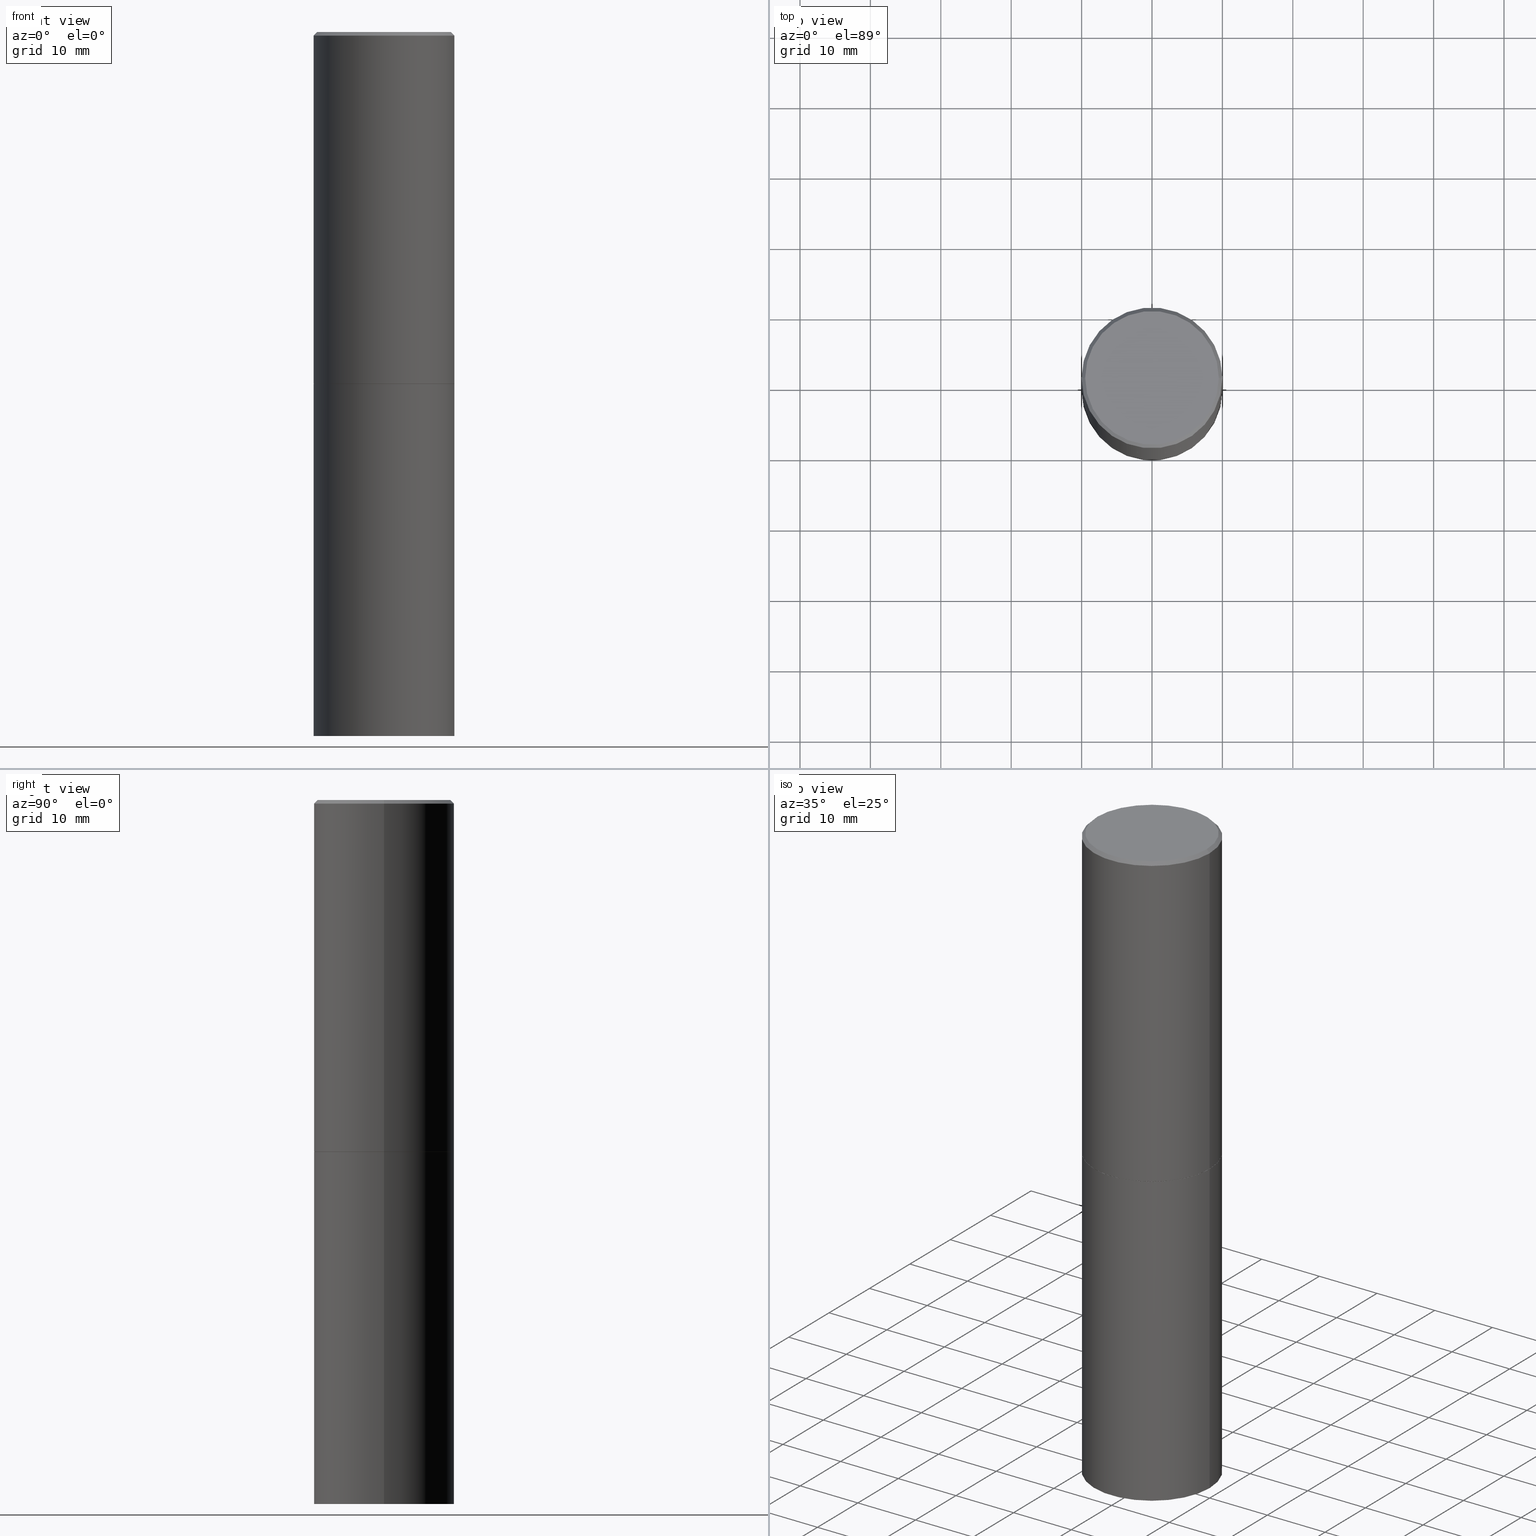
[diagram: canonical four-view strip — front | top / right | iso, engineering-drawing reading convention]
A machine part, canonical four-view strip (front | top / right | iso — engineering-drawing reading convention). The complete STEP part file that produces these views, byte-faithful:
ISO-10303-21;
HEADER;
FILE_DESCRIPTION (( 'STEP AP203' ),
    '1' );
FILE_NAME ('74793.STEP',
    '2024-05-03T15:03:54',
    ( '' ),
    ( '' ),
    'SwSTEP 2.0',
    'SolidWorks 2023',
    '' );
FILE_SCHEMA (( 'CONFIG_CONTROL_DESIGN' ));
ENDSEC;

DATA;
#1 = CARTESIAN_POINT ( 'NONE',  ( 4.813905344975442395E-29, -6.872981015512733285E-15, -1.968500000000000361 ) ) ;
#2 = CARTESIAN_POINT ( 'NONE',  ( -0.3937000000000001609, -6.722528297878588461E-16, -1.967500000000000027 ) ) ;
#3 = AXIS2_PLACEMENT_3D ( 'NONE', #167, #295, #170 ) ;
#4 = CARTESIAN_POINT ( 'NONE',  ( 4.813905344975442395E-29, -6.872981015512733285E-15, -1.968500000000000361 ) ) ;
#5 = PERSON_AND_ORGANIZATION ( #17, #74 ) ;
#6 = PLANE ( 'NONE',  #180 ) ;
#7 = DIRECTION ( 'NONE',  ( -0.7071067811864750752, 7.493145998870092258E-15, 0.7071067811866199593 ) ) ;
#8 = DIRECTION ( 'NONE',  ( -2.445468806185136597E-29, 3.491481338843145583E-15, 1.000000000000000000 ) ) ;
#9 = LOCAL_TIME ( 11, 3, 54.00000000000000000, #90 ) ;
#10 = VECTOR ( 'NONE', #147, 39.37007874015748143 ) ;
#11 = DIRECTION ( 'NONE',  ( 1.000000000000000000, -6.982962677686266711E-15, 4.876212485538977921E-29 ) ) ;
#12 = APPROVAL ( #317, 'UNSPECIFIED' ) ;
#13 = CC_DESIGN_DATE_AND_TIME_ASSIGNMENT ( #29, #286, ( #327 ) ) ;
#14 = VECTOR ( 'NONE', #193, 39.37007874015748143 ) ;
#15 = LOCAL_TIME ( 11, 3, 54.00000000000000000, #63 ) ;
#16 = APPROVAL_DATE_TIME ( #80, #354 ) ;
#17 = PERSON ( 'UNSPECIFIED', 'UNSPECIFIED', 'UNSPECIFIED', ('UNSPECIFIED'), ('UNSPECIFIED'), ('UNSPECIFIED') ) ;
#18 = ORIENTED_EDGE ( 'NONE', *, *, #344, .F. ) ;
#19 = CONICAL_SURFACE ( 'NONE', #244, 0.3936999999999998279, 0.7853981633974457255 ) ;
#20 = CARTESIAN_POINT ( 'NONE',  ( -0.3936999999999998279, 2.679362779428218735E-15, -0.02000000000000008715 ) ) ;
#21 = ORIENTED_EDGE ( 'NONE', *, *, #47, .T. ) ;
#22 = COORDINATED_UNIVERSAL_TIME_OFFSET ( 5, 0, .BEHIND. ) ;
#23 = EDGE_LOOP ( 'NONE', ( #265, #303 ) ) ;
#24 = EDGE_CURVE ( 'NONE', #50, #243, #133, .T. ) ;
#25 = LINE ( 'NONE', #222, #210 ) ;
#26 = DATE_AND_TIME ( #174, #53 ) ;
#27 = ORIENTED_EDGE ( 'NONE', *, *, #84, .F. ) ;
#28 = CIRCLE ( 'NONE', #3, 0.3937000000000001609 ) ;
#29 = DATE_AND_TIME ( #365, #9 ) ;
#30 = DIRECTION ( 'NONE',  ( 1.000000000000000000, -6.982962677686267499E-15, 0.000000000000000000 ) ) ;
#31 = DATE_AND_TIME ( #309, #15 ) ;
#32 = VERTEX_POINT ( 'NONE', #2 ) ;
#33 = DIRECTION ( 'NONE',  ( -2.445468806185136597E-29, 3.491481338843145583E-15, 1.000000000000000000 ) ) ;
#34 = PERSON_AND_ORGANIZATION ( #17, #74 ) ;
#35 = LINE ( 'NONE', #151, #267 ) ;
#36 = CIRCLE ( 'NONE', #333, 0.3937000000000001609 ) ;
#37 = MANIFOLD_SOLID_BREP ( 'Body-Move/Copy2[2]', #360 ) ;
#38 = DIRECTION ( 'NONE',  ( 0.7071067811864750752, -2.468850131081498176E-15, 0.7071067811866199593 ) ) ;
#39 = EDGE_CURVE ( 'NONE', #243, #248, #338, .T. ) ;
#40 = CYLINDRICAL_SURFACE ( 'NONE', #218, 0.3936999999999999389 ) ;
#41 = CARTESIAN_POINT ( 'NONE',  ( 4.813905344975441835E-29, -6.872981015512731707E-15, -1.968500000000000139 ) ) ;
#42 =( NAMED_UNIT ( * ) SI_UNIT ( $, .STERADIAN. ) SOLID_ANGLE_UNIT ( ) );
#43 = CONICAL_SURFACE ( 'NONE', #239, 0.3936999999999998279, 0.7853981633974457255 ) ;
#44 = APPROVAL_PERSON_ORGANIZATION ( #160, #354, #100 ) ;
#45 = CARTESIAN_POINT ( 'NONE',  ( 0.000000000000000000, 0.000000000000000000, 0.000000000000000000 ) ) ;
#46 = VECTOR ( 'NONE', #38, 39.37007874015748143 ) ;
#47 = EDGE_CURVE ( 'NONE', #186, #278, #140, .T. ) ;
#48 = ORIENTED_EDGE ( 'NONE', *, *, #39, .T. ) ;
#49 = CARTESIAN_POINT ( 'NONE',  ( -2.087702828670439639E-46, 2.980686340760894400E-32, 8.537024980200822558E-18 ) ) ;
#50 = VERTEX_POINT ( 'NONE', #228 ) ;
#51 = AXIS2_PLACEMENT_3D ( 'NONE', #253, #116, #148 ) ;
#52 = AXIS2_PLACEMENT_3D ( 'NONE', #118, #288, #149 ) ;
#53 = LOCAL_TIME ( 11, 3, 54.00000000000000000, #199 ) ;
#54 = ORIENTED_EDGE ( 'NONE', *, *, #39, .F. ) ;
#55 = DIRECTION ( 'NONE',  ( -2.438088387897960049E-29, 3.491481338843145188E-15, 1.000000000000000000 ) ) ;
#56 = EDGE_LOOP ( 'NONE', ( #111, #355, #102, #362 ) ) ;
#57 = ORIENTED_EDGE ( 'NONE', *, *, #189, .T. ) ;
#58 = DIRECTION ( 'NONE',  ( 1.000000000000000000, -6.982962677686265922E-15, 4.876176775795935793E-29 ) ) ;
#59 = EDGE_LOOP ( 'NONE', ( #330, #322, #358, #21 ) ) ;
#60 =( LENGTH_UNIT ( ) NAMED_UNIT ( * ) SI_UNIT ( $, .METRE. ) );
#61 = PERSON_AND_ORGANIZATION_ROLE ( 'design_supplier' ) ;
#62 = DIRECTION ( 'NONE',  ( 1.000000000000000000, -6.982962677686265133E-15, 0.000000000000000000 ) ) ;
#63 = COORDINATED_UNIVERSAL_TIME_OFFSET ( 5, 0, .BEHIND. ) ;
#64 = FACE_OUTER_BOUND ( 'NONE', #56, .T. ) ;
#65 = AXIS2_PLACEMENT_3D ( 'NONE', #166, #281, #364 ) ;
#66 = EDGE_CURVE ( 'NONE', #248, #32, #28, .T. ) ;
#67 = SECURITY_CLASSIFICATION ( '', '', #86 ) ;
#68 = DIRECTION ( 'NONE',  ( -2.445468806185136877E-29, 3.491481338843145188E-15, 1.000000000000000000 ) ) ;
#69 = DIRECTION ( 'NONE',  ( -2.445468806185136597E-29, 3.491481338843145583E-15, 1.000000000000000000 ) ) ;
#70 = DIRECTION ( 'NONE',  ( -2.445468806185136597E-29, 3.491481338843145583E-15, 1.000000000000000000 ) ) ;
#71 = PERSON_AND_ORGANIZATION ( #17, #74 ) ;
#72 = ADVANCED_FACE ( 'NONE', ( #287 ), #256, .T. ) ;
#73 = EDGE_LOOP ( 'NONE', ( #18, #114 ) ) ;
#74 = ORGANIZATION ( 'UNSPECIFIED', 'UNSPECIFIED', '' ) ;
#75 = CC_DESIGN_DATE_AND_TIME_ASSIGNMENT ( #26, #241, ( #67 ) ) ;
#76 = ORIENTED_EDGE ( 'NONE', *, *, #146, .F. ) ;
#77 = DIRECTION ( 'NONE',  ( 1.000000000000000000, -6.982962677686266711E-15, 4.876212485538977921E-29 ) ) ;
#78 = ORIENTED_EDGE ( 'NONE', *, *, #234, .T. ) ;
#79 = CIRCLE ( 'NONE', #187, 0.3937000000000000499 ) ;
#80 = DATE_AND_TIME ( #240, #280 ) ;
#81 = ORIENTED_EDGE ( 'NONE', *, *, #66, .F. ) ;
#82 = DIRECTION ( 'NONE',  ( -1.000000000000000000, 6.982962677686266711E-15, 0.000000000000000000 ) ) ;
#83 = CYLINDRICAL_SURFACE ( 'NONE', #128, 0.3937000000000000499 ) ;
#84 = EDGE_CURVE ( 'NONE', #32, #186, #96, .T. ) ;
#85 = UNCERTAINTY_MEASURE_WITH_UNIT (LENGTH_MEASURE( 1.000000000000000082E-05 ), #232, 'distance_accuracy_value', 'NONE');
#86 = SECURITY_CLASSIFICATION_LEVEL ( 'unclassified' ) ;
#87 = CARTESIAN_POINT ( 'NONE',  ( 2.609533152651356226E-15, 0.3736999999999998101, -1.300498063835582617E-15 ) ) ;
#88 = CONICAL_SURFACE ( 'NONE', #320, 0.3926999999999999935, 0.7853981633973459164 ) ;
#89 = CARTESIAN_POINT ( 'NONE',  ( 0.000000000000000000, 0.000000000000000000, 0.000000000000000000 ) ) ;
#90 = COORDINATED_UNIVERSAL_TIME_OFFSET ( 5, 0, .BEHIND. ) ;
#91 = CARTESIAN_POINT ( 'NONE',  ( -0.3936999999999999389, 2.797406750687513998E-15, -1.936584745033356455E-29 ) ) ;
#92 = APPROVAL_STATUS ( 'not_yet_approved' ) ;
#93 = CARTESIAN_POINT ( 'NONE',  ( 0.3937000000000000499, -9.622173421717814924E-15, -1.968500000000000139 ) ) ;
#94 = ADVANCED_FACE ( 'NONE', ( #197 ), #6, .F. ) ;
#95 = DIRECTION ( 'NONE',  ( -2.445468806185136597E-29, 3.491481338843145583E-15, 1.000000000000000000 ) ) ;
#96 = LINE ( 'NONE', #91, #268 ) ;
#97 = DIRECTION ( 'NONE',  ( -1.000000000000000000, 6.982962677686266711E-15, 0.000000000000000000 ) ) ;
#98 = EDGE_CURVE ( 'NONE', #246, #131, #79, .T. ) ;
#99 = ORIENTED_EDGE ( 'NONE', *, *, #254, .T. ) ;
#100 = APPROVAL_ROLE ( '' ) ;
#101 = PRODUCT_DEFINITION_FORMATION_WITH_SPECIFIED_SOURCE ( 'ANY', '', #144, .NOT_KNOWN. ) ;
#102 = ORIENTED_EDGE ( 'NONE', *, *, #254, .F. ) ;
#103 = ADVANCED_FACE ( 'NONE', ( #200 ), #83, .T. ) ;
#104 = EDGE_LOOP ( 'NONE', ( #217, #139, #81, #54 ) ) ;
#105 = AXIS2_PLACEMENT_3D ( 'NONE', #266, #70, #296 ) ;
#106 = CC_DESIGN_PERSON_AND_ORGANIZATION_ASSIGNMENT ( #337, #169, ( #327 ) ) ;
#107 = SHAPE_DEFINITION_REPRESENTATION ( #308, #154 ) ;
#108 = VERTEX_POINT ( 'NONE', #290 ) ;
#109 = APPLICATION_PROTOCOL_DEFINITION ( 'international standard', 'config_control_design', 1994, #184 ) ;
#110 = FACE_OUTER_BOUND ( 'NONE', #59, .T. ) ;
#111 = ORIENTED_EDGE ( 'NONE', *, *, #66, .T. ) ;
#112 = LINE ( 'NONE', #336, #14 ) ;
#113 = PERSON_AND_ORGANIZATION ( #17, #74 ) ;
#114 = ORIENTED_EDGE ( 'NONE', *, *, #24, .F. ) ;
#115 = DIRECTION ( 'NONE',  ( -2.445468806185136597E-29, 3.491481338843145583E-15, 1.000000000000000000 ) ) ;
#116 = DIRECTION ( 'NONE',  ( -2.445468806185136597E-29, 3.491481338843145583E-15, 1.000000000000000000 ) ) ;
#117 = EDGE_CURVE ( 'NONE', #50, #32, #35, .T. ) ;
#118 = CARTESIAN_POINT ( 'NONE',  ( 2.749192406205130943E-15, 0.3936999999999931110, -1.968500000000001471 ) ) ;
#119 = PERSON_AND_ORGANIZATION_ROLE ( 'classification_officer' ) ;
#120 = CARTESIAN_POINT ( 'NONE',  ( 9.627810689950883669E-29, -1.374596203102546341E-14, -3.937000000000000277 ) ) ;
#121 = LENGTH_MEASURE_WITH_UNIT ( LENGTH_MEASURE( 0.02539999999999999897 ), #60 );
#122 = CC_DESIGN_PERSON_AND_ORGANIZATION_ASSIGNMENT ( #150, #61, ( #101 ) ) ;
#123 = APPROVAL_ROLE ( '' ) ;
#124 = DIRECTION ( 'NONE',  ( -1.000000000000000000, 6.982962677686265922E-15, -4.876176775795935793E-29 ) ) ;
#125 =( NAMED_UNIT ( * ) PLANE_ANGLE_UNIT ( ) SI_UNIT ( $, .RADIAN. ) );
#126 = FACE_OUTER_BOUND ( 'NONE', #73, .T. ) ;
#127 = APPROVAL_PERSON_ORGANIZATION ( #289, #185, #252 ) ;
#128 = AXIS2_PLACEMENT_3D ( 'NONE', #171, #191, #58 ) ;
#129 = EDGE_CURVE ( 'NONE', #347, #136, #326, .T. ) ;
#130 = EDGE_LOOP ( 'NONE', ( #263, #78, #99, #307 ) ) ;
#131 = VERTEX_POINT ( 'NONE', #93 ) ;
#132 = EDGE_LOOP ( 'NONE', ( #277, #57 ) ) ;
#133 = CIRCLE ( 'NONE', #51, 0.3926999999999999935 ) ;
#134 = CONICAL_SURFACE ( 'NONE', #305, 0.3926999999999999935, 0.7853981633973459164 ) ;
#135 = FACE_OUTER_BOUND ( 'NONE', #329, .T. ) ;
#136 = VERTEX_POINT ( 'NONE', #318 ) ;
#137 = ADVANCED_FACE ( 'NONE', ( #64 ), #233, .T. ) ;
#138 = CC_DESIGN_PERSON_AND_ORGANIZATION_ASSIGNMENT ( #71, #300, ( #144 ) ) ;
#139 = ORIENTED_EDGE ( 'NONE', *, *, #117, .T. ) ;
#140 = CIRCLE ( 'NONE', #182, 0.3936999999999998279 ) ;
#141 = AXIS2_PLACEMENT_3D ( 'NONE', #335, #293, #152 ) ;
#142 = DIRECTION ( 'NONE',  ( -0.7071067811865456854, 2.468850131082237733E-15, -0.7071067811865493491 ) ) ;
#143 = VERTEX_POINT ( 'NONE', #202 ) ;
#144 = PRODUCT ( '74793', '74793', '', ( #157 ) ) ;
#145 = FACE_OUTER_BOUND ( 'NONE', #130, .T. ) ;
#146 = EDGE_CURVE ( 'NONE', #136, #347, #192, .T. ) ;
#147 = DIRECTION ( 'NONE',  ( -2.445468806185136877E-29, 3.491481338843145188E-15, 1.000000000000000000 ) ) ;
#148 = DIRECTION ( 'NONE',  ( 1.000000000000000000, -6.982962677686265133E-15, 0.000000000000000000 ) ) ;
#149 = DIRECTION ( 'NONE',  ( -1.000000000000000000, 6.982962677686265922E-15, -4.876176775795935793E-29 ) ) ;
#150 = PERSON_AND_ORGANIZATION ( #17, #74 ) ;
#151 = CARTESIAN_POINT ( 'NONE',  ( -0.3926999999999999935, -4.082679692182819507E-15, -1.968500000000000361 ) ) ;
#152 = DIRECTION ( 'NONE',  ( 1.000000000000000000, -6.982962677686266711E-15, 4.876176775795935793E-29 ) ) ;
#153 = CARTESIAN_POINT ( 'NONE',  ( 9.627810689950883669E-29, -1.374596203102546341E-14, -3.937000000000000277 ) ) ;
#154 = ADVANCED_BREP_SHAPE_REPRESENTATION ( '74793', ( #272, #37, #237 ), #361 ) ;
#155 = AXIS2_PLACEMENT_3D ( 'NONE', #153, #310, #30 ) ;
#156 = ADVANCED_FACE ( 'NONE', ( #145 ), #43, .T. ) ;
#157 = MECHANICAL_CONTEXT ( 'NONE', #162, 'mechanical' ) ;
#158 = DESIGN_CONTEXT ( 'detailed design', #184, 'design' ) ;
#159 = VECTOR ( 'NONE', #68, 39.37007874015748143 ) ;
#160 = PERSON_AND_ORGANIZATION ( #17, #74 ) ;
#161 = ORIENTED_EDGE ( 'NONE', *, *, #24, .T. ) ;
#162 = APPLICATION_CONTEXT ( 'configuration controlled 3d designs of mechanical parts and assemblies' ) ;
#163 = ORIENTED_EDGE ( 'NONE', *, *, #129, .T. ) ;
#164 = EDGE_CURVE ( 'NONE', #347, #246, #349, .T. ) ;
#165 = ORIENTED_EDGE ( 'NONE', *, *, #331, .T. ) ;
#166 = CARTESIAN_POINT ( 'NONE',  ( 4.813905344975441835E-29, -6.872981015512731707E-15, -1.968500000000000139 ) ) ;
#167 = CARTESIAN_POINT ( 'NONE',  ( 4.811459876169256232E-29, -6.869489534173888700E-15, -1.967500000000000027 ) ) ;
#168 = CARTESIAN_POINT ( 'NONE',  ( 0.3937000000000001609, -9.618681940378971917E-15, -1.967500000000000027 ) ) ;
#169 = PERSON_AND_ORGANIZATION_ROLE ( 'creator' ) ;
#170 = DIRECTION ( 'NONE',  ( 1.000000000000000000, -6.982962677686265922E-15, 0.000000000000000000 ) ) ;
#171 = CARTESIAN_POINT ( 'NONE',  ( 0.000000000000000000, 0.000000000000000000, 0.000000000000000000 ) ) ;
#172 = DIMENSIONAL_EXPONENTS ( 1.000000000000000000, 0.000000000000000000, 0.000000000000000000, 0.000000000000000000, 0.000000000000000000, 0.000000000000000000, 0.000000000000000000 ) ;
#173 = FACE_OUTER_BOUND ( 'NONE', #104, .T. ) ;
#174 = CALENDAR_DATE ( 2024, 3, 5 ) ;
#175 = DIRECTION ( 'NONE',  ( 2.438088387897960049E-29, -3.491481338843145188E-15, -1.000000000000000000 ) ) ;
#176 = CIRCLE ( 'NONE', #279, 0.3926999999999999935 ) ;
#177 = ADVANCED_FACE ( 'NONE', ( #126 ), #275, .F. ) ;
#178 = CARTESIAN_POINT ( 'NONE',  ( -0.3937000000000000499, -7.512064772581583563E-15, -3.937000000000000277 ) ) ;
#179 = DIRECTION ( 'NONE',  ( 2.438088387897960049E-29, -3.491481338843145188E-15, -1.000000000000000000 ) ) ;
#180 = AXIS2_PLACEMENT_3D ( 'NONE', #87, #179, #315 ) ;
#181 = ORIENTED_EDGE ( 'NONE', *, *, #117, .F. ) ;
#182 = AXIS2_PLACEMENT_3D ( 'NONE', #284, #69, #260 ) ;
#183 = AXIS2_PLACEMENT_3D ( 'NONE', #342, #175, #124 ) ;
#184 = APPLICATION_CONTEXT ( 'configuration controlled 3d designs of mechanical parts and assemblies' ) ;
#185 = APPROVAL ( #92, 'UNSPECIFIED' ) ;
#186 = VERTEX_POINT ( 'NONE', #20 ) ;
#187 = AXIS2_PLACEMENT_3D ( 'NONE', #41, #8, #62 ) ;
#188 = ORIENTED_EDGE ( 'NONE', *, *, #331, .F. ) ;
#189 = EDGE_CURVE ( 'NONE', #108, #143, #274, .T. ) ;
#190 = DIRECTION ( 'NONE',  ( 1.000000000000000000, -6.982962677686265922E-15, 4.876176775795935793E-29 ) ) ;
#191 = DIRECTION ( 'NONE',  ( -2.445468806185136597E-29, 3.491481338843145583E-15, 1.000000000000000000 ) ) ;
#192 = CIRCLE ( 'NONE', #155, 0.3937000000000000499 ) ;
#193 = DIRECTION ( 'NONE',  ( 0.7071067811865456854, -7.319954787623249734E-15, -0.7071067811865493491 ) ) ;
#194 = CARTESIAN_POINT ( 'NONE',  ( 0.3926999999999999935, -9.615190459040128910E-15, -1.968500000000000361 ) ) ;
#195 = DIRECTION ( 'NONE',  ( -2.445468806185136597E-29, 3.491481338843145583E-15, 1.000000000000000000 ) ) ;
#196 = APPROVAL_DATE_TIME ( #31, #12 ) ;
#197 = FACE_OUTER_BOUND ( 'NONE', #132, .T. ) ;
#198 = CARTESIAN_POINT ( 'NONE',  ( 4.890937612370294178E-31, -6.982962677686321191E-17, -0.02000000000000008715 ) ) ;
#199 = COORDINATED_UNIVERSAL_TIME_OFFSET ( 5, 0, .BEHIND. ) ;
#200 = FACE_OUTER_BOUND ( 'NONE', #304, .T. ) ;
#201 = FACE_OUTER_BOUND ( 'NONE', #221, .T. ) ;
#202 = CARTESIAN_POINT ( 'NONE',  ( -0.3736999999999998101, 2.644447966039787875E-15, 8.537024980182450727E-18 ) ) ;
#203 = AXIS2_PLACEMENT_3D ( 'NONE', #49, #33, #11 ) ;
#204 = CARTESIAN_POINT ( 'NONE',  ( -0.3937000000000000499, -7.512064772581583563E-15, -1.968500000000000139 ) ) ;
#205 = DIRECTION ( 'NONE',  ( -2.445468806185136877E-29, 3.491481338843145188E-15, 1.000000000000000000 ) ) ;
#206 = EDGE_CURVE ( 'NONE', #143, #186, #25, .T. ) ;
#207 = CIRCLE ( 'NONE', #203, 0.3736999999999998101 ) ;
#208 = ADVANCED_FACE ( 'NONE', ( #135 ), #88, .T. ) ;
#209 = ORIENTED_EDGE ( 'NONE', *, *, #98, .F. ) ;
#210 = VECTOR ( 'NONE', #142, 39.37007874015748143 ) ;
#211 = CC_DESIGN_APPROVAL ( #185, ( #327 ) ) ;
#212 = ADVANCED_FACE ( 'NONE', ( #110 ), #19, .T. ) ;
#213 = ORIENTED_EDGE ( 'NONE', *, *, #146, .T. ) ;
#214 = PRODUCT_RELATED_PRODUCT_CATEGORY ( 'detail', '', ( #144 ) ) ;
#215 = CARTESIAN_POINT ( 'NONE',  ( 4.813905344975442395E-29, -6.872981015512733285E-15, -1.968500000000000361 ) ) ;
#216 = EDGE_CURVE ( 'NONE', #131, #246, #339, .T. ) ;
#217 = ORIENTED_EDGE ( 'NONE', *, *, #344, .T. ) ;
#218 = AXIS2_PLACEMENT_3D ( 'NONE', #89, #195, #230 ) ;
#219 = ORIENTED_EDGE ( 'NONE', *, *, #164, .F. ) ;
#220 = CARTESIAN_POINT ( 'NONE',  ( 4.890937612370294178E-31, -6.982962677686321191E-17, -0.02000000000000008715 ) ) ;
#221 = EDGE_LOOP ( 'NONE', ( #27, #165, #269, #251 ) ) ;
#222 = CARTESIAN_POINT ( 'NONE',  ( -0.3936999999999998279, 2.679362779428218735E-15, -0.02000000000000008715 ) ) ;
#223 = DATE_AND_TIME ( #259, #328 ) ;
#224 = DIRECTION ( 'NONE',  ( -2.445468806185136877E-29, 3.491481338843145188E-15, 1.000000000000000000 ) ) ;
#225 = AXIS2_PLACEMENT_3D ( 'NONE', #247, #55, #190 ) ;
#226 = CC_DESIGN_APPROVAL ( #354, ( #67 ) ) ;
#227 = CARTESIAN_POINT ( 'NONE',  ( 4.811459876169256232E-29, -6.869489534173888700E-15, -1.967500000000000027 ) ) ;
#228 = CARTESIAN_POINT ( 'NONE',  ( -0.3926999999999999935, -4.077381237834596316E-15, -1.968500000000000361 ) ) ;
#229 = CC_DESIGN_PERSON_AND_ORGANIZATION_ASSIGNMENT ( #34, #314, ( #101 ) ) ;
#230 = DIRECTION ( 'NONE',  ( 1.000000000000000000, -6.982962677686266711E-15, 4.876176775795935793E-29 ) ) ;
#231 = DIRECTION ( 'NONE',  ( -2.445468806185136597E-29, 3.491481338843145583E-15, 1.000000000000000000 ) ) ;
#232 =( CONVERSION_BASED_UNIT ( 'INCH', #121 ) LENGTH_UNIT ( ) NAMED_UNIT ( #172 ) );
#233 = CYLINDRICAL_SURFACE ( 'NONE', #141, 0.3936999999999999389 ) ;
#234 = EDGE_CURVE ( 'NONE', #108, #278, #112, .T. ) ;
#235 = DIRECTION ( 'NONE',  ( -2.445468806185136597E-29, 3.491481338843145583E-15, 1.000000000000000000 ) ) ;
#236 = CARTESIAN_POINT ( 'NONE',  ( -0.3937000000000000499, 2.797406750687514786E-15, -1.936584745033356735E-29 ) ) ;
#237 = AXIS2_PLACEMENT_3D ( 'NONE', #45, #271, #242 ) ;
#238 = EDGE_CURVE ( 'NONE', #143, #108, #207, .T. ) ;
#239 = AXIS2_PLACEMENT_3D ( 'NONE', #366, #324, #97 ) ;
#240 = CALENDAR_DATE ( 2024, 3, 5 ) ;
#241 = DATE_TIME_ROLE ( 'classification_date' ) ;
#242 = DIRECTION ( 'NONE',  ( 1.000000000000000000, 0.000000000000000000, 0.000000000000000000 ) ) ;
#243 = VERTEX_POINT ( 'NONE', #294 ) ;
#244 = AXIS2_PLACEMENT_3D ( 'NONE', #220, #334, #82 ) ;
#245 = DIRECTION ( 'NONE',  ( -2.445468806185136597E-29, 3.491481338843145583E-15, 1.000000000000000000 ) ) ;
#246 = VERTEX_POINT ( 'NONE', #204 ) ;
#247 = CARTESIAN_POINT ( 'NONE',  ( 4.813905344975441835E-29, -6.872981015512731707E-15, -1.968500000000000139 ) ) ;
#248 = VERTEX_POINT ( 'NONE', #168 ) ;
#249 = ORIENTED_EDGE ( 'NONE', *, *, #129, .F. ) ;
#250 = DIRECTION ( 'NONE',  ( 1.000000000000000000, -6.982962677686265133E-15, 0.000000000000000000 ) ) ;
#251 = ORIENTED_EDGE ( 'NONE', *, *, #47, .F. ) ;
#252 = APPROVAL_ROLE ( '' ) ;
#253 = CARTESIAN_POINT ( 'NONE',  ( 4.813905344975442395E-29, -6.872981015512733285E-15, -1.968500000000000361 ) ) ;
#254 = EDGE_CURVE ( 'NONE', #278, #186, #297, .T. ) ;
#255 = PLANE ( 'NONE',  #52 ) ;
#256 = PLANE ( 'NONE',  #183 ) ;
#257 = CC_DESIGN_SECURITY_CLASSIFICATION ( #67, ( #101 ) ) ;
#258 = DIRECTION ( 'NONE',  ( -2.445468806185136597E-29, 3.491481338843145583E-15, 1.000000000000000000 ) ) ;
#259 = CALENDAR_DATE ( 2024, 3, 5 ) ;
#260 = DIRECTION ( 'NONE',  ( 1.000000000000000000, -6.982962677686266711E-15, 0.000000000000000000 ) ) ;
#261 = ADVANCED_FACE ( 'NONE', ( #292 ), #255, .F. ) ;
#262 = DIRECTION ( 'NONE',  ( 1.000000000000000000, -6.982962677686266711E-15, 0.000000000000000000 ) ) ;
#263 = ORIENTED_EDGE ( 'NONE', *, *, #189, .F. ) ;
#264 = FACE_OUTER_BOUND ( 'NONE', #359, .T. ) ;
#265 = ORIENTED_EDGE ( 'NONE', *, *, #216, .T. ) ;
#266 = CARTESIAN_POINT ( 'NONE',  ( 0.000000000000000000, 0.000000000000000000, 0.000000000000000000 ) ) ;
#267 = VECTOR ( 'NONE', #7, 39.37007874015748143 ) ;
#268 = VECTOR ( 'NONE', #224, 39.37007874015748143 ) ;
#269 = ORIENTED_EDGE ( 'NONE', *, *, #299, .T. ) ;
#270 = APPROVAL_STATUS ( 'not_yet_approved' ) ;
#271 = DIRECTION ( 'NONE',  ( 0.000000000000000000, 0.000000000000000000, 1.000000000000000000 ) ) ;
#272 = MANIFOLD_SOLID_BREP ( 'Body-Move/Copy2[1]', #319 ) ;
#273 = DIRECTION ( 'NONE',  ( -2.445468806185136597E-29, 3.491481338843145583E-15, 1.000000000000000000 ) ) ;
#274 = CIRCLE ( 'NONE', #348, 0.3736999999999998101 ) ;
#275 = PLANE ( 'NONE',  #225 ) ;
#276 = ORIENTED_EDGE ( 'NONE', *, *, #216, .F. ) ;
#277 = ORIENTED_EDGE ( 'NONE', *, *, #238, .T. ) ;
#278 = VERTEX_POINT ( 'NONE', #285 ) ;
#279 = AXIS2_PLACEMENT_3D ( 'NONE', #4, #95, #340 ) ;
#280 = LOCAL_TIME ( 11, 3, 54.00000000000000000, #22 ) ;
#281 = DIRECTION ( 'NONE',  ( -2.445468806185136597E-29, 3.491481338843145583E-15, 1.000000000000000000 ) ) ;
#282 = EDGE_CURVE ( 'NONE', #136, #131, #346, .T. ) ;
#283 = APPROVAL_DATE_TIME ( #223, #185 ) ;
#284 = CARTESIAN_POINT ( 'NONE',  ( 4.890937612370294178E-31, -6.982962677686321191E-17, -0.02000000000000008715 ) ) ;
#285 = CARTESIAN_POINT ( 'NONE',  ( 0.3936999999999998279, -2.770807688499514156E-15, -0.02000000000000008715 ) ) ;
#286 = DATE_TIME_ROLE ( 'creation_date' ) ;
#287 = FACE_OUTER_BOUND ( 'NONE', #357, .T. ) ;
#288 = DIRECTION ( 'NONE',  ( 2.438088387897960049E-29, -3.491481338843145188E-15, -1.000000000000000000 ) ) ;
#289 = PERSON_AND_ORGANIZATION ( #17, #74 ) ;
#290 = CARTESIAN_POINT ( 'NONE',  ( 0.3736999999999998101, -2.667287895133366781E-15, 8.537024980219274507E-18 ) ) ;
#291 = VECTOR ( 'NONE', #205, 39.37007874015748143 ) ;
#292 = FACE_OUTER_BOUND ( 'NONE', #23, .T. ) ;
#293 = DIRECTION ( 'NONE',  ( -2.445468806185136597E-29, 3.491481338843145583E-15, 1.000000000000000000 ) ) ;
#294 = CARTESIAN_POINT ( 'NONE',  ( 0.3926999999999999935, -9.615190459040128910E-15, -1.968500000000000361 ) ) ;
#295 = DIRECTION ( 'NONE',  ( -2.445468806185136597E-29, 3.491481338843145583E-15, 1.000000000000000000 ) ) ;
#296 = DIRECTION ( 'NONE',  ( 1.000000000000000000, -6.982962677686265922E-15, 4.876176775795935793E-29 ) ) ;
#297 = CIRCLE ( 'NONE', #352, 0.3936999999999998279 ) ;
#298 = CC_DESIGN_APPROVAL ( #12, ( #101 ) ) ;
#299 = EDGE_CURVE ( 'NONE', #248, #278, #312, .T. ) ;
#300 = PERSON_AND_ORGANIZATION_ROLE ( 'design_owner' ) ;
#301 = ADVANCED_FACE ( 'NONE', ( #173 ), #134, .T. ) ;
#302 = ORIENTED_EDGE ( 'NONE', *, *, #164, .T. ) ;
#303 = ORIENTED_EDGE ( 'NONE', *, *, #98, .T. ) ;
#304 = EDGE_LOOP ( 'NONE', ( #219, #163, #313, #209 ) ) ;
#305 = AXIS2_PLACEMENT_3D ( 'NONE', #1, #115, #316 ) ;
#306 = CARTESIAN_POINT ( 'NONE',  ( -2.087702828670439639E-46, 2.980686340760894400E-32, 8.537024980200822558E-18 ) ) ;
#307 = ORIENTED_EDGE ( 'NONE', *, *, #206, .F. ) ;
#308 = PRODUCT_DEFINITION_SHAPE ( 'NONE', 'NONE',  #327 ) ;
#309 = CALENDAR_DATE ( 2024, 3, 5 ) ;
#310 = DIRECTION ( 'NONE',  ( -2.445468806185136597E-29, 3.491481338843145583E-15, 1.000000000000000000 ) ) ;
#311 = APPROVAL_PERSON_ORGANIZATION ( #113, #12, #123 ) ;
#312 = LINE ( 'NONE', #351, #10 ) ;
#313 = ORIENTED_EDGE ( 'NONE', *, *, #282, .T. ) ;
#314 = PERSON_AND_ORGANIZATION_ROLE ( 'creator' ) ;
#315 = DIRECTION ( 'NONE',  ( -1.000000000000000000, 6.982962677686265922E-15, -4.876176775795935793E-29 ) ) ;
#316 = DIRECTION ( 'NONE',  ( 1.000000000000000000, -6.982962677686265133E-15, 0.000000000000000000 ) ) ;
#317 = APPROVAL_STATUS ( 'not_yet_approved' ) ;
#318 = CARTESIAN_POINT ( 'NONE',  ( 0.3937000000000000499, -1.649515443723054663E-14, -3.937000000000000277 ) ) ;
#319 = CLOSED_SHELL ( 'NONE', ( #353, #72, #261, #103 ) ) ;
#320 = AXIS2_PLACEMENT_3D ( 'NONE', #215, #245, #250 ) ;
#321 = CARTESIAN_POINT ( 'NONE',  ( 0.3937000000000000499, -2.749192406205083217E-15, 1.919750796630860172E-29 ) ) ;
#322 = ORIENTED_EDGE ( 'NONE', *, *, #238, .F. ) ;
#323 = CYLINDRICAL_SURFACE ( 'NONE', #105, 0.3937000000000000499 ) ;
#324 = DIRECTION ( 'NONE',  ( 2.445468806185136597E-29, -3.491481338843145583E-15, -1.000000000000000000 ) ) ;
#325 = APPLICATION_PROTOCOL_DEFINITION ( 'international standard', 'config_control_design', 1994, #162 ) ;
#326 = CIRCLE ( 'NONE', #356, 0.3937000000000000499 ) ;
#327 = PRODUCT_DEFINITION ( 'UNKNOWN', '', #101, #158 ) ;
#328 = LOCAL_TIME ( 11, 3, 54.00000000000000000, #341 ) ;
#329 = EDGE_LOOP ( 'NONE', ( #181, #161, #48, #188 ) ) ;
#330 = ORIENTED_EDGE ( 'NONE', *, *, #234, .F. ) ;
#331 = EDGE_CURVE ( 'NONE', #32, #248, #36, .T. ) ;
#332 = ORIENTED_EDGE ( 'NONE', *, *, #282, .F. ) ;
#333 = AXIS2_PLACEMENT_3D ( 'NONE', #227, #258, #343 ) ;
#334 = DIRECTION ( 'NONE',  ( 2.445468806185136597E-29, -3.491481338843145583E-15, -1.000000000000000000 ) ) ;
#335 = CARTESIAN_POINT ( 'NONE',  ( 0.000000000000000000, 0.000000000000000000, 0.000000000000000000 ) ) ;
#336 = CARTESIAN_POINT ( 'NONE',  ( 0.3936999999999998279, -2.770807688499514156E-15, -0.02000000000000008715 ) ) ;
#337 = PERSON_AND_ORGANIZATION ( #17, #74 ) ;
#338 = LINE ( 'NONE', #194, #46 ) ;
#339 = CIRCLE ( 'NONE', #65, 0.3937000000000000499 ) ;
#340 = DIRECTION ( 'NONE',  ( 1.000000000000000000, -6.982962677686265133E-15, 0.000000000000000000 ) ) ;
#341 = COORDINATED_UNIVERSAL_TIME_OFFSET ( 5, 0, .BEHIND. ) ;
#342 = CARTESIAN_POINT ( 'NONE',  ( 2.749192406205179063E-15, 0.3936999999999862832, -3.937000000000001609 ) ) ;
#343 = DIRECTION ( 'NONE',  ( 1.000000000000000000, -6.982962677686265922E-15, 0.000000000000000000 ) ) ;
#344 = EDGE_CURVE ( 'NONE', #243, #50, #176, .T. ) ;
#345 = DIRECTION ( 'NONE',  ( 1.000000000000000000, -6.982962677686267499E-15, 0.000000000000000000 ) ) ;
#346 = LINE ( 'NONE', #321, #159 ) ;
#347 = VERTEX_POINT ( 'NONE', #178 ) ;
#348 = AXIS2_PLACEMENT_3D ( 'NONE', #306, #273, #77 ) ;
#349 = LINE ( 'NONE', #236, #291 ) ;
#350 = ADVANCED_FACE ( 'NONE', ( #201 ), #40, .T. ) ;
#351 = CARTESIAN_POINT ( 'NONE',  ( 0.3936999999999999389, -2.749192406205082822E-15, 1.919750796630859611E-29 ) ) ;
#352 = AXIS2_PLACEMENT_3D ( 'NONE', #198, #235, #262 ) ;
#353 = ADVANCED_FACE ( 'NONE', ( #264 ), #323, .T. ) ;
#354 = APPROVAL ( #270, 'UNSPECIFIED' ) ;
#355 = ORIENTED_EDGE ( 'NONE', *, *, #84, .T. ) ;
#356 = AXIS2_PLACEMENT_3D ( 'NONE', #120, #231, #345 ) ;
#357 = EDGE_LOOP ( 'NONE', ( #76, #249 ) ) ;
#358 = ORIENTED_EDGE ( 'NONE', *, *, #206, .T. ) ;
#359 = EDGE_LOOP ( 'NONE', ( #213, #302, #276, #332 ) ) ;
#360 = CLOSED_SHELL ( 'NONE', ( #301, #137, #156, #212, #350, #208, #177, #94 ) ) ;
#361 =( GEOMETRIC_REPRESENTATION_CONTEXT ( 3 ) GLOBAL_UNCERTAINTY_ASSIGNED_CONTEXT ( ( #85 ) ) GLOBAL_UNIT_ASSIGNED_CONTEXT ( ( #232, #125, #42 ) ) REPRESENTATION_CONTEXT ( 'NONE', 'WORKASPACE' ) );
#362 = ORIENTED_EDGE ( 'NONE', *, *, #299, .F. ) ;
#363 = CC_DESIGN_PERSON_AND_ORGANIZATION_ASSIGNMENT ( #5, #119, ( #67 ) ) ;
#364 = DIRECTION ( 'NONE',  ( 1.000000000000000000, -6.982962677686265133E-15, 0.000000000000000000 ) ) ;
#365 = CALENDAR_DATE ( 2024, 3, 5 ) ;
#366 = CARTESIAN_POINT ( 'NONE',  ( 4.890937612370294178E-31, -6.982962677686321191E-17, -0.02000000000000008715 ) ) ;
ENDSEC;
END-ISO-10303-21;
